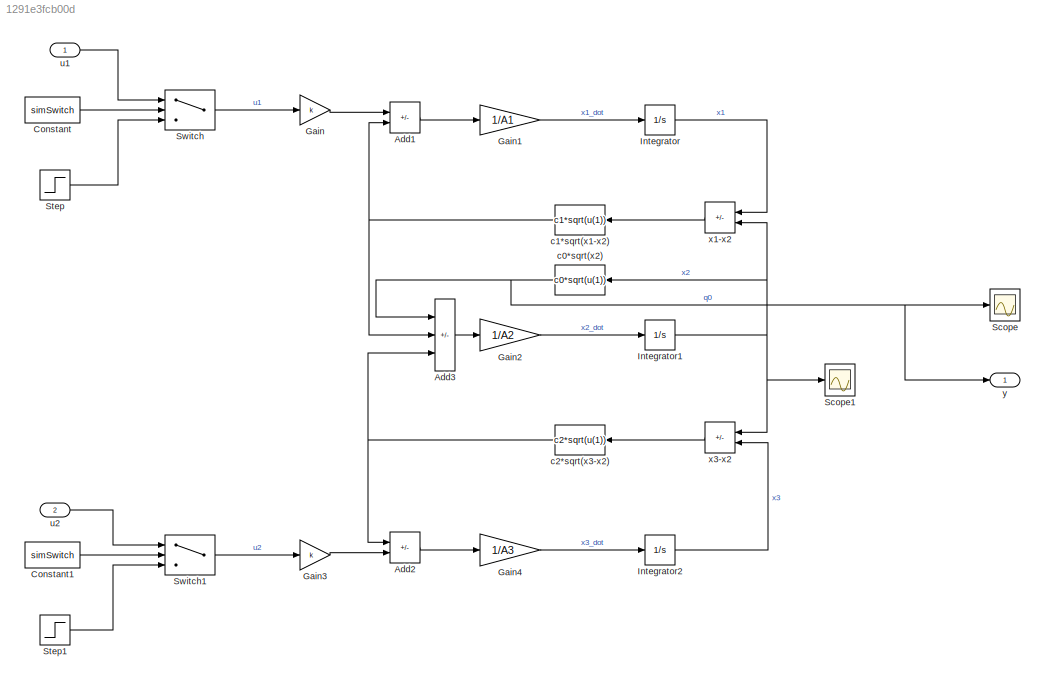
MODEL slx_1291e3fcb00d
KIND model
CONFIG AbsTol = auto
CONFIG EnableMultiTasking = off
CONFIG FixedStep = auto
CONFIG MaxStep = auto
CONFIG MinStep = auto
CONFIG RelTol = 1e-3
CONFIG SampleTimeConstraint = Unconstrained
CONFIG SolverName = ode4
CONFIG StartTime = 0.0
CONFIG StopTime = 5000
BLOCK [Sum] Add1
  IconShape = rectangular
  Inputs = +-
  Ports = [2, 1]
BLOCK [Sum] Add2
  IconShape = rectangular
  Inputs = -+
  Ports = [2, 1]
BLOCK [Sum] Add3
  IconShape = rectangular
  Inputs = -++
  Ports = [3, 1]
BLOCK [Constant] Constant
  Value = simSwitch
BLOCK [Constant] Constant1
  Value = simSwitch
BLOCK [Gain] Gain
  Gain = k
BLOCK [Gain] Gain1
  Gain = 1/A1
BLOCK [Gain] Gain2
  Gain = 1/A2
BLOCK [Gain] Gain3
  Gain = k
BLOCK [Gain] Gain4
  Gain = 1/A3
BLOCK [Integrator] Integrator
  InitialCondition = x0(1)
  Ports = [1, 1]
  Priority = 1
BLOCK [Integrator] Integrator1
  InitialCondition = x0(2)
  Ports = [1, 1]
  Priority = 2
BLOCK [Integrator] Integrator2
  InitialCondition = x0(3)
  Ports = [1, 1]
  Priority = 3
BLOCK [Scope] Scope
  Floating = off
  NumInputPorts = 1
  Ports = [1]
  ScopeSpecificationString = Simulink.scopes.TimeScopeBlockCfg('CurrentConfiguration', extmgr.ConfigurationSet(extmgr.Configuration('Core','General UI',true),extmgr.Configuration('Core','Source UI',true),extmgr.Configuration('Sources','WiredSimulink',true),extmgr.Configuration('Visuals','Time Domain',true,'SerializedDisplays',{struct('MinYLimReal','-0.0025','MaxYLimReal','0.0225','YLabelReal','','MinYLimMag','0.00000','MaxYLi...<+1316ch>
BLOCK [Scope] Scope1
  Floating = off
  NumInputPorts = 1
  Ports = [1]
  ScopeSpecificationString = Simulink.scopes.TimeScopeBlockCfg('CurrentConfiguration', extmgr.ConfigurationSet(extmgr.Configuration('Core','General UI',true),extmgr.Configuration('Core','Source UI',true),extmgr.Configuration('Sources','WiredSimulink',true,'DataLoggingVariableName','ScopeData1'),extmgr.Configuration('Visuals','Time Domain',true,'SerializedDisplays',{struct('MinYLimReal','-0.0025','MaxYLimReal','0.0225','YLabel...<+1355ch>
BLOCK [Step] Step
  After = u
  Before = u
  SampleTime = 0.1
  Time = 0
BLOCK [Step] Step1
  After = u
  Before = u
  SampleTime = 0.1
  Time = 0
BLOCK [Switch] Switch
  InputSameDT = off
  SaturateOnIntegerOverflow = off
BLOCK [Switch] Switch1
  InputSameDT = off
  SaturateOnIntegerOverflow = off
BLOCK [Fcn] c0*sqrt(x2)
  Expr = c0*sqrt(u(1))
  NameLocation = top
BLOCK [Fcn] c1*sqrt(x1-x2)
  Expr = c1*sqrt(u(1))
  NameLocation = top
BLOCK [Fcn] c2*sqrt(x3-x2)
  Expr = c2*sqrt(u(1))
  NameLocation = top
BLOCK [Inport] u1
BLOCK [Inport] u2
  Port = 2
BLOCK [Sum] x1-x2
  IconShape = rectangular
  Inputs = +-
  NameLocation = top
  Ports = [2, 1]
BLOCK [Sum] x3-x2
  IconShape = rectangular
  Inputs = -+
  NameLocation = top
  Ports = [2, 1]
BLOCK [Outport] y
LINE Add1:1 -> Gain1:1
LINE Add2:1 -> Gain4:1
LINE Add3:1 -> Gain2:1
LINE Constant1:1 -> Switch1:2
LINE Constant:1 -> Switch:2
LINE Gain1:1 -> Integrator:1
LINE Gain2:1 -> Integrator1:1
LINE Gain3:1 -> Add2:2
LINE Gain4:1 -> Integrator2:1
LINE Gain:1 -> Add1:1
NET Integrator1:1 -> Scope1:1, c0*sqrt(x2):1, x1-x2:2, x3-x2:1
LINE Integrator2:1 -> x3-x2:2
LINE Integrator:1 -> x1-x2:1
LINE Step1:1 -> Switch1:3
LINE Step:1 -> Switch:3
LINE Switch1:1 -> Gain3:1
LINE Switch:1 -> Gain:1
NET c0*sqrt(x2):1 -> Add3:1, Scope:1, y:1
NET c1*sqrt(x1-x2):1 -> Add1:2, Add3:2
NET c2*sqrt(x3-x2):1 -> Add2:1, Add3:3
LINE u1:1 -> Switch:1
LINE u2:1 -> Switch1:1
LINE x1-x2:1 -> c1*sqrt(x1-x2):1
LINE x3-x2:1 -> c2*sqrt(x3-x2):1
note: NET lines group one-source signal fan-out (src -> all destinations, sorted); 1:1 wires keep LINE
